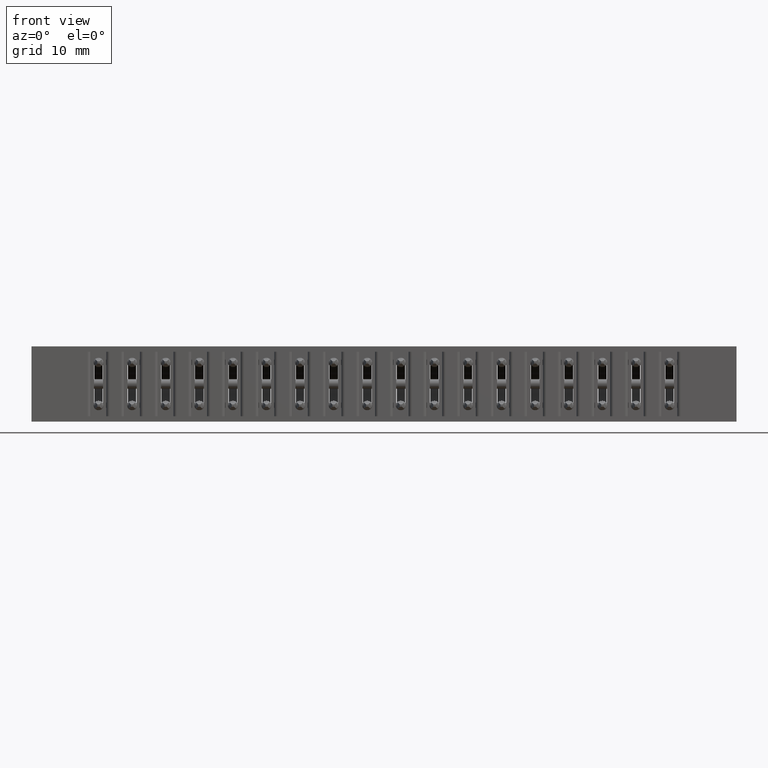
[diagram: clean part render]
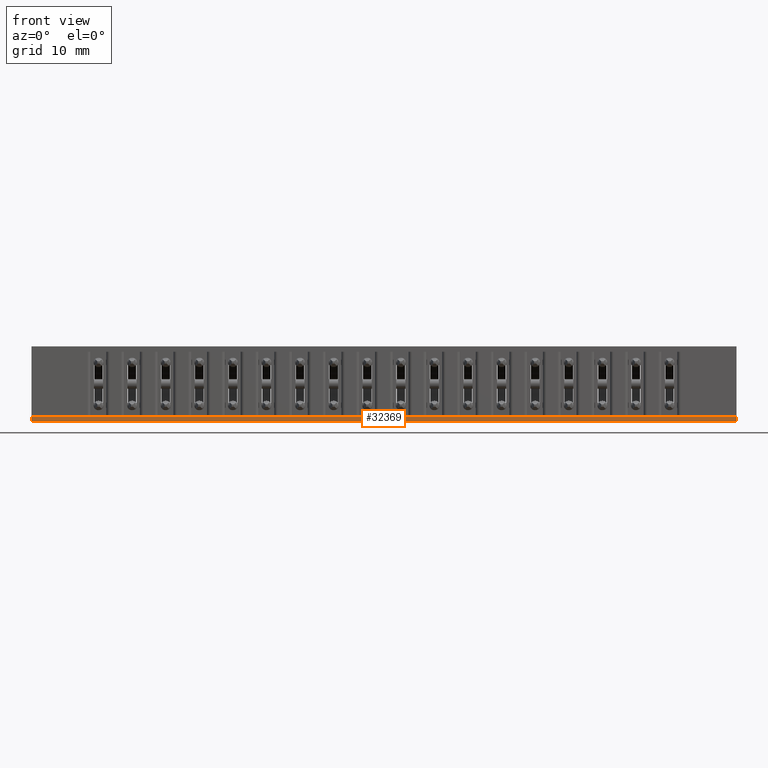
[diagram: same view with one face highlighted and labeled with its STEP entity id]
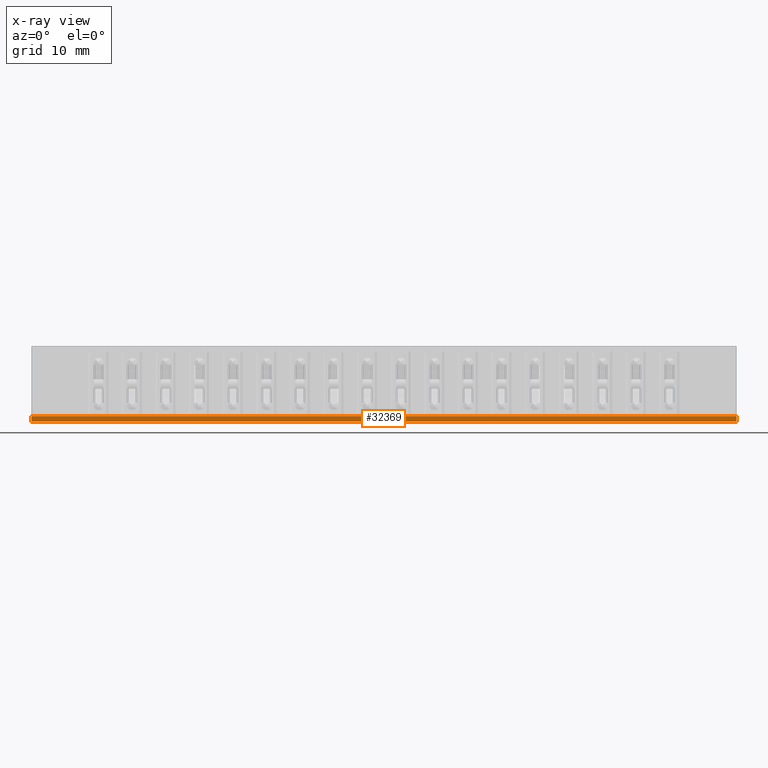
[diagram: x-ray of the same camera — body ghosted, the highlighted face saturated]
A machine part, front view. The second image highlights one B-rep face of the part: STEP entity #32369.
The next image is the same camera in x-ray: the body ghosted, the highlighted face saturated — about 0% of this face is hidden behind the body in this view.
In plain terms, the highlighted planar face has unit normal (0, 1, 0).
Its self-contained STEP definition (entity closure, byte-faithful):
#2652 = LINE ( 'NONE', #31365, #34108 ) ;
#3902 = CARTESIAN_POINT ( 'NONE',  ( 3.274000000000000021, 0.1000000000000000056, -0.3499999999999999778 ) ) ;
#4766 = DIRECTION ( 'NONE',  ( -1.000000000000000000, -0.0000000000000000000, -0.0000000000000000000 ) ) ;
#4772 = PLANE ( 'NONE',  #4890 ) ;
#4890 = AXIS2_PLACEMENT_3D ( 'NONE', #16307, #31552, #5778 ) ;
#4907 = DIRECTION ( 'NONE',  ( -0.0000000000000000000, -0.0000000000000000000, -1.000000000000000000 ) ) ;
#5205 = EDGE_CURVE ( 'NONE', #31292, #23015, #2652, .T. ) ;
#5778 = DIRECTION ( 'NONE',  ( 0.0000000000000000000, -0.0000000000000000000, 1.000000000000000000 ) ) ;
#8488 = ORIENTED_EDGE ( 'NONE', *, *, #10881, .T. ) ;
#10709 = EDGE_CURVE ( 'NONE', #23015, #21798, #20152, .T. ) ;
#10881 = EDGE_CURVE ( 'NONE', #31292, #24753, #23576, .T. ) ;
#10966 = DIRECTION ( 'NONE',  ( -0.0000000000000000000, -0.0000000000000000000, -1.000000000000000000 ) ) ;
#13415 = EDGE_LOOP ( 'NONE', ( #34170, #28449, #27098, #8488 ) ) ;
#13716 = CARTESIAN_POINT ( 'NONE',  ( 3.274000000000000021, 0.1000000000000000056, -0.3249999999999999556 ) ) ;
#16307 = CARTESIAN_POINT ( 'NONE',  ( 3.274000000000000021, 0.1000000000000000056, -0.3499999999999999778 ) ) ;
#17156 = CARTESIAN_POINT ( 'NONE',  ( 0.0000000000000000000, 0.1000000000000000056, -0.3249999999999999556 ) ) ;
#17380 = DIRECTION ( 'NONE',  ( -1.000000000000000000, -0.0000000000000000000, -0.0000000000000000000 ) ) ;
#17389 = FACE_OUTER_BOUND ( 'NONE', #13415, .T. ) ;
#20152 = LINE ( 'NONE', #3902, #28371 ) ;
#21798 = VERTEX_POINT ( 'NONE', #23157 ) ;
#22343 = EDGE_CURVE ( 'NONE', #24753, #21798, #27854, .T. ) ;
#23015 = VERTEX_POINT ( 'NONE', #30967 ) ;
#23157 = CARTESIAN_POINT ( 'NONE',  ( 0.0000000000000000000, 0.1000000000000000056, -0.3499999999999999778 ) ) ;
#23454 = CARTESIAN_POINT ( 'NONE',  ( 0.0000000000000000000, 0.1000000000000000056, -0.3499999999999999778 ) ) ;
#23576 = LINE ( 'NONE', #33793, #30051 ) ;
#24753 = VERTEX_POINT ( 'NONE', #17156 ) ;
#27098 = ORIENTED_EDGE ( 'NONE', *, *, #5205, .F. ) ;
#27854 = LINE ( 'NONE', #23454, #28208 ) ;
#28208 = VECTOR ( 'NONE', #10966, 39.37007874015748143 ) ;
#28371 = VECTOR ( 'NONE', #17380, 39.37007874015748143 ) ;
#28449 = ORIENTED_EDGE ( 'NONE', *, *, #10709, .F. ) ;
#30051 = VECTOR ( 'NONE', #4766, 39.37007874015748143 ) ;
#30967 = CARTESIAN_POINT ( 'NONE',  ( 3.274000000000000021, 0.1000000000000000056, -0.3499999999999999778 ) ) ;
#31292 = VERTEX_POINT ( 'NONE', #13716 ) ;
#31365 = CARTESIAN_POINT ( 'NONE',  ( 3.274000000000000021, 0.1000000000000000056, -0.3499999999999999778 ) ) ;
#31552 = DIRECTION ( 'NONE',  ( 0.0000000000000000000, 1.000000000000000000, 0.0000000000000000000 ) ) ;
#32369 = ADVANCED_FACE ( 'NONE', ( #17389 ), #4772, .F. ) ;
#33793 = CARTESIAN_POINT ( 'NONE',  ( 3.274000000000000021, 0.1000000000000000056, -0.3249999999999999556 ) ) ;
#34108 = VECTOR ( 'NONE', #4907, 39.37007874015748143 ) ;
#34170 = ORIENTED_EDGE ( 'NONE', *, *, #22343, .T. ) ;